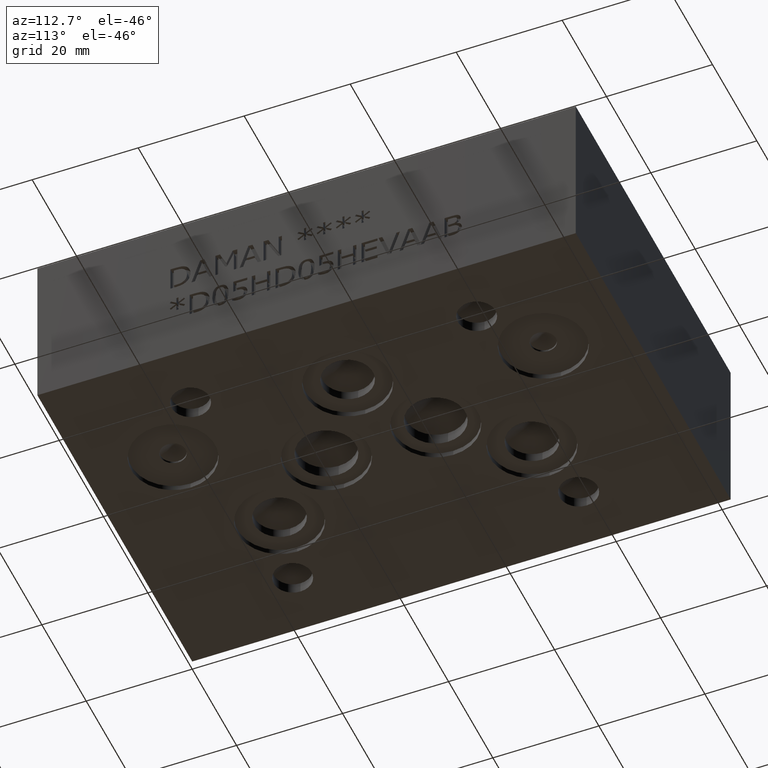
[diagram: clean part render]
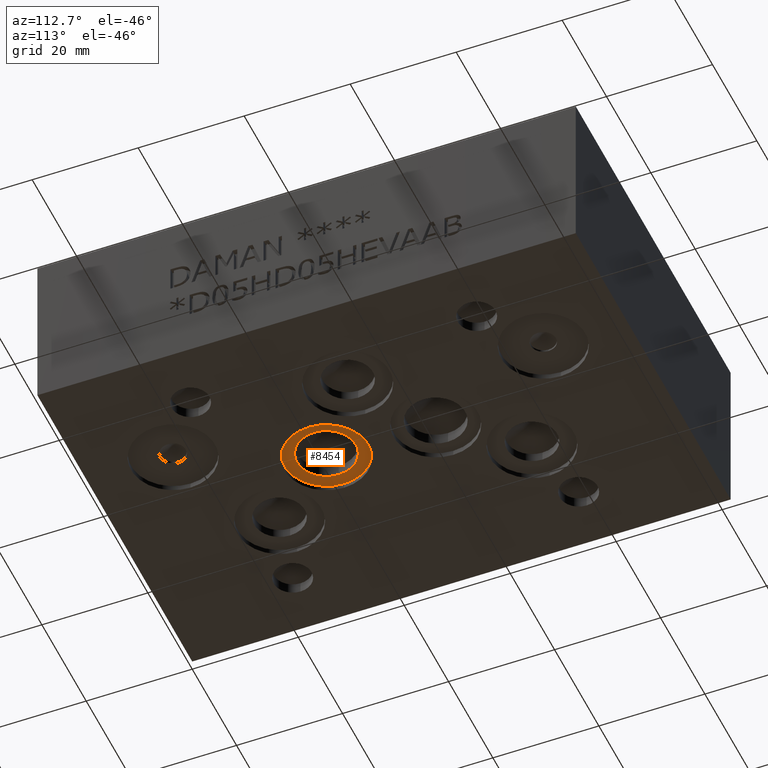
[diagram: same view with one face highlighted and labeled with its STEP entity id]
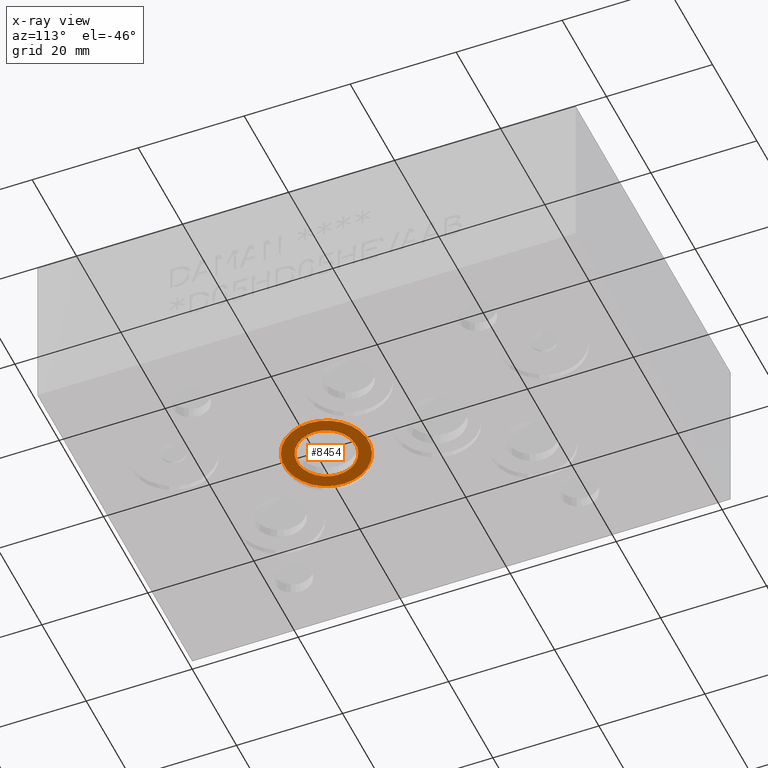
[diagram: x-ray of the same camera — body ghosted, the highlighted face saturated]
A machine part, auxiliary view. The second image highlights one B-rep face of the part: STEP entity #8454.
The next image is the same camera in x-ray: the body ghosted, the highlighted face saturated — about 0% of this face is hidden behind the body in this view.
In plain terms, the highlighted planar face has unit normal (0, 0, -1).
Its self-contained STEP definition (entity closure, byte-faithful):
#45=CIRCLE('',#8793,5.5626);
#70=CIRCLE('',#8833,7.9375);
#71=CIRCLE('',#8834,7.9375);
#208=FACE_BOUND('',#1340,.T.);
#879=FACE_OUTER_BOUND('',#1339,.T.);
#1339=EDGE_LOOP('',(#7171,#7172));
#1340=EDGE_LOOP('',(#7173));
#3827=VERTEX_POINT('',#13900);
#3858=VERTEX_POINT('',#13985);
#3859=VERTEX_POINT('',#13987);
#4953=EDGE_CURVE('',#3827,#3827,#45,.T.);
#4993=EDGE_CURVE('',#3859,#3858,#70,.T.);
#4994=EDGE_CURVE('',#3858,#3859,#71,.T.);
#7171=ORIENTED_EDGE('',*,*,#4993,.T.);
#7172=ORIENTED_EDGE('',*,*,#4994,.T.);
#7173=ORIENTED_EDGE('',*,*,#4953,.T.);
#7711=PLANE('',#8835);
#8454=ADVANCED_FACE('',(#879,#208),#7711,.T.);
#8793=AXIS2_PLACEMENT_3D('',#13901,#10336,#10337);
#8833=AXIS2_PLACEMENT_3D('',#13988,#10431,#10432);
#8834=AXIS2_PLACEMENT_3D('',#13989,#10433,#10434);
#8835=AXIS2_PLACEMENT_3D('',#13990,#10435,#10436);
#10336=DIRECTION('center_axis',(0.,0.,1.));
#10337=DIRECTION('ref_axis',(1.,0.,0.));
#10431=DIRECTION('center_axis',(0.,0.,-1.));
#10432=DIRECTION('ref_axis',(1.,0.,0.));
#10433=DIRECTION('center_axis',(0.,0.,-1.));
#10434=DIRECTION('ref_axis',(1.,0.,0.));
#10435=DIRECTION('center_axis',(0.,0.,-1.));
#10436=DIRECTION('ref_axis',(1.,0.,0.));
#13900=CARTESIAN_POINT('',(30.9626,40.6019,1.016));
#13901=CARTESIAN_POINT('Origin',(36.5252,40.6019,1.016));
#13985=CARTESIAN_POINT('',(28.5877,40.6019,1.016));
#13987=CARTESIAN_POINT('',(44.4627,40.6019,1.016));
#13988=CARTESIAN_POINT('Origin',(36.5252,40.6019,1.016));
#13989=CARTESIAN_POINT('Origin',(36.5252,40.6019,1.016));
#13990=CARTESIAN_POINT('Origin',(36.5252,40.6019,1.016));